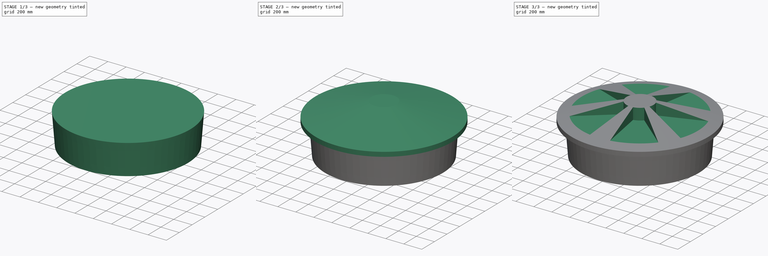
[diagram: build sequence overview — one tinted view per stage of 3, left to right]
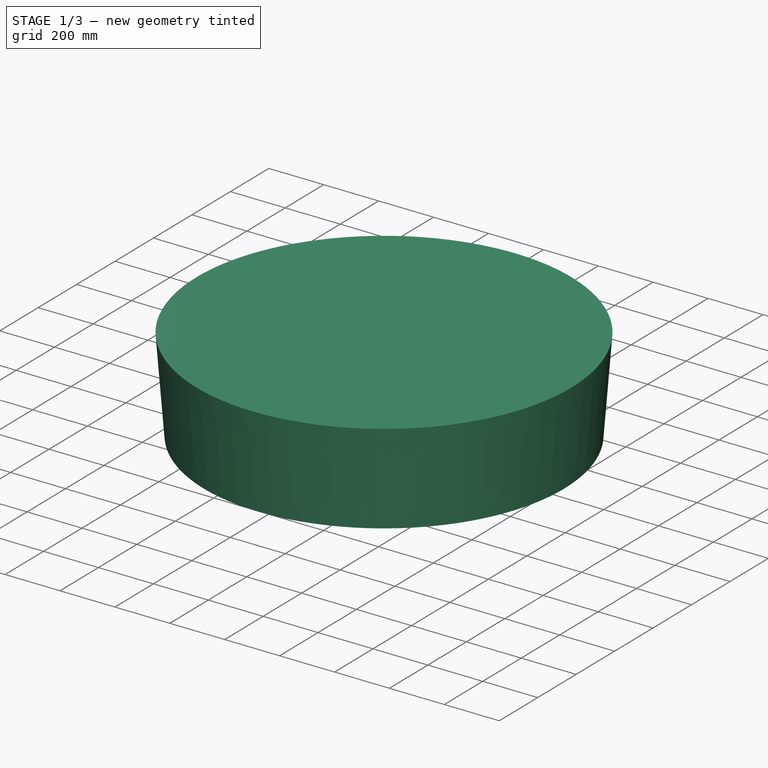
[diagram: stage 1 of 3 — iso view after this stage's code; geometry added in this stage tinted green]
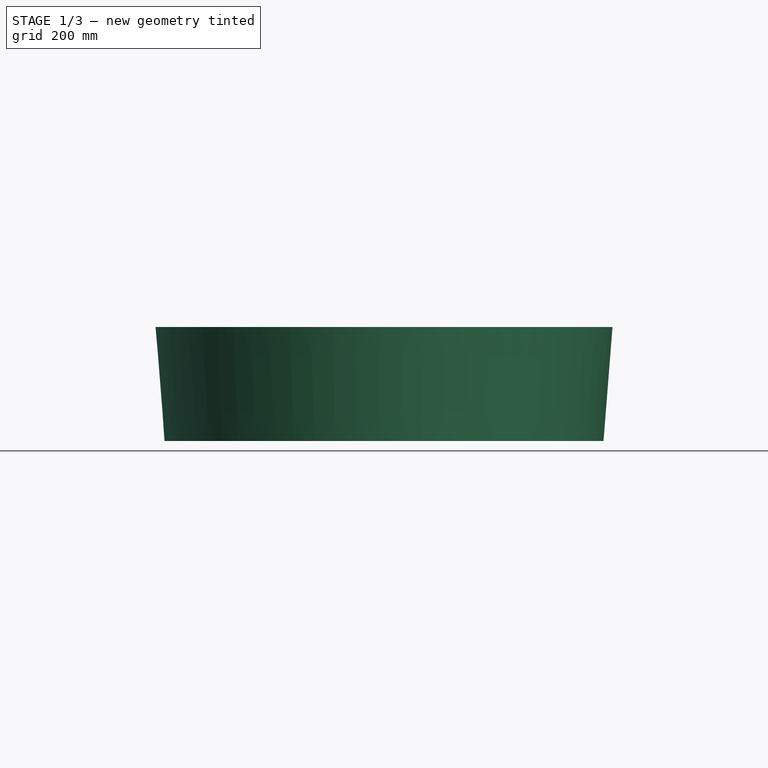
[diagram: stage 1 of 3 — front view after this stage's code; geometry added in this stage tinted green]
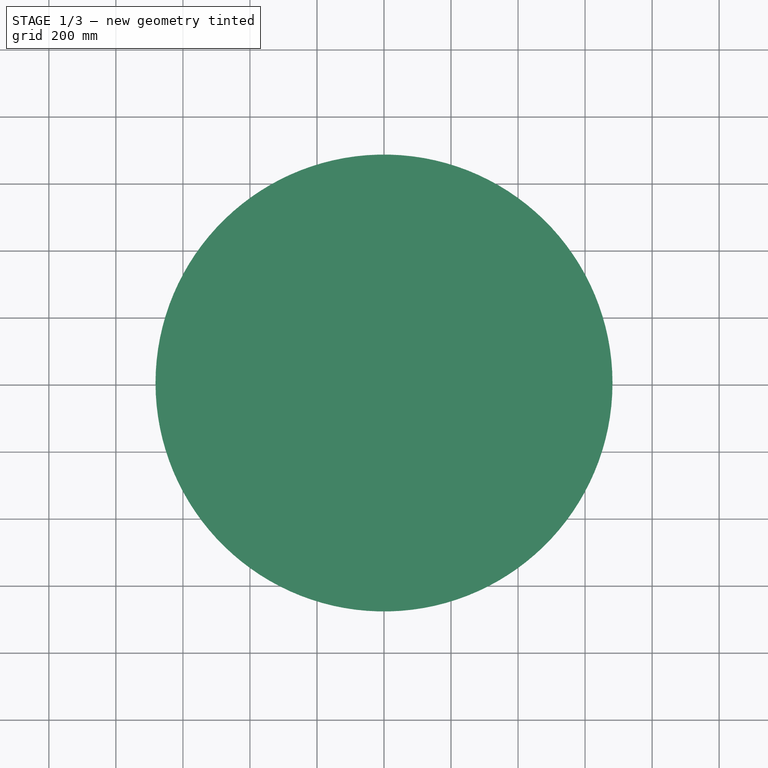
[diagram: stage 1 of 3 — top view after this stage's code; geometry added in this stage tinted green]
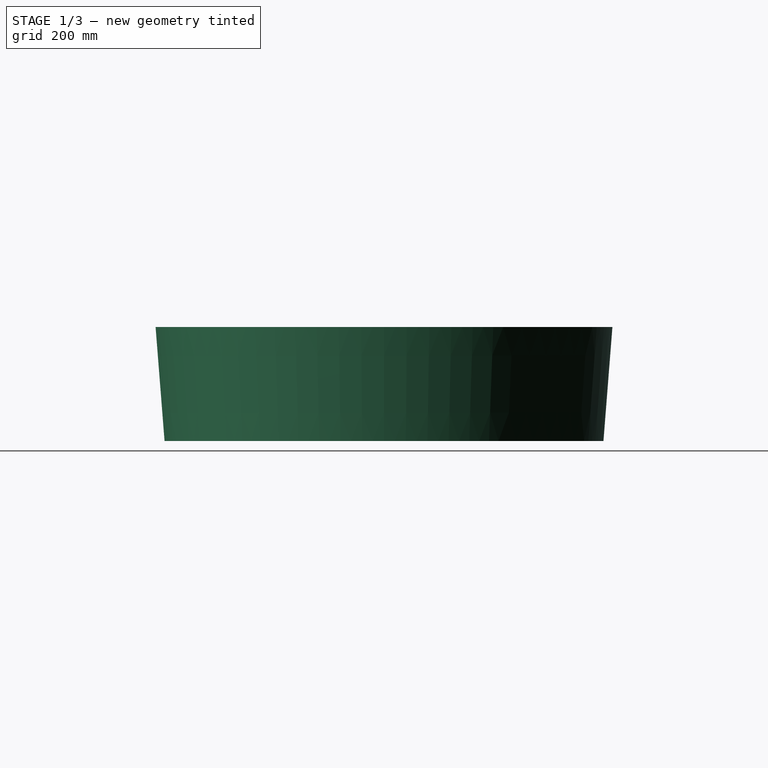
[diagram: stage 1 of 3 — right view after this stage's code; geometry added in this stage tinted green]
FCSTD DOCUMENT  (FreeCAD 0.17R8761 (Git))
Label: Water tank 500L flat
License: CreativeCommons Attribution
LicenseURL: http://creativecommons.org/licenses/by/4.0/
objects: Sketcher::SketchObject×4, PartDesign::Pad×2, PartDesign::Draft×1, PartDesign::Revolution×1, PartDesign::Pocket×1, PartDesign::PolarPattern×1, PartDesign::Body×1
note: 15 computed .brp shape members not serialized (recipe doc carries the construction recipe); baked Part::Feature solids carry a one-line shape summary decoded from their .brp

FEATURE [Sketcher::SketchObject] Sketch
  MapMode = 5
  Support = -> [XY_Plane]
  expr: Constraints[1] = 131cm / 2
  sketch-geometry (1):
    g0: Circle CenterX=0 CenterY=0 CenterZ=0 NormalX=0 NormalY=0 NormalZ=1 Radius=655
  constraints (2):
    c: Coincident(g0,g-1)
    c: Radius(g0) = 655
FEATURE [PartDesign::Pad] Pad
  Length = 340
  Length2 = 100
  Profile = -> Sketch
  Type = 0
FEATURE [PartDesign::Draft] Draft
  Angle = 4.5
  Base = -> Pad [Face1]
  BaseFeature = -> Pad
  NeutralPlane = -> Pad [Face2]
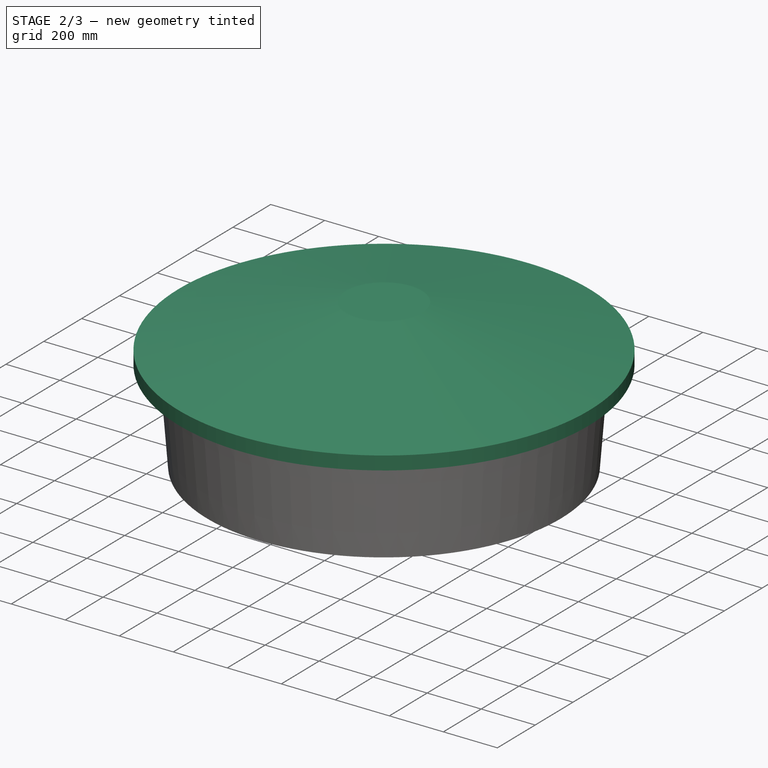
[diagram: stage 2 of 3 — iso view after this stage's code; geometry added in this stage tinted green]
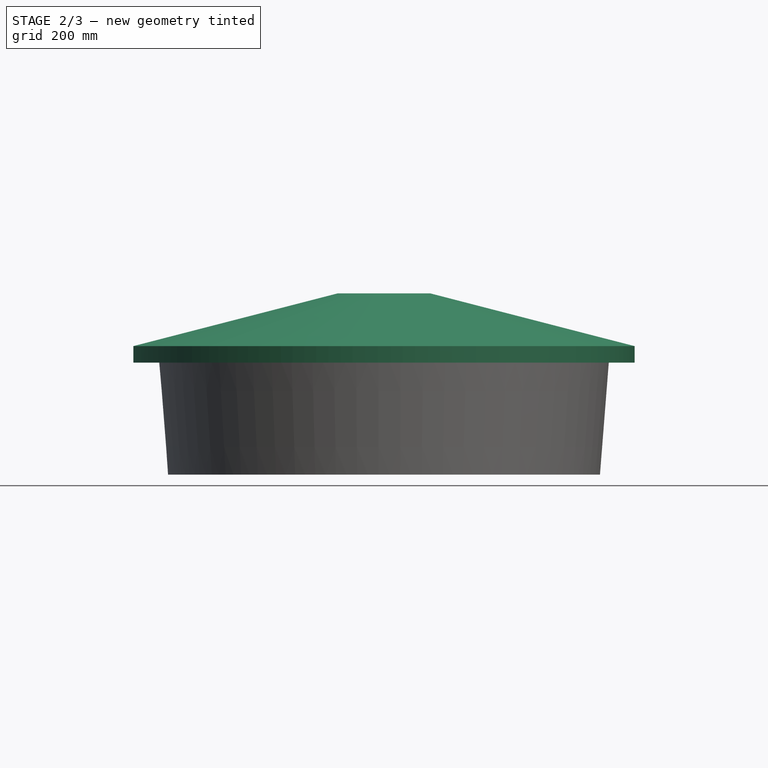
[diagram: stage 2 of 3 — front view after this stage's code; geometry added in this stage tinted green]
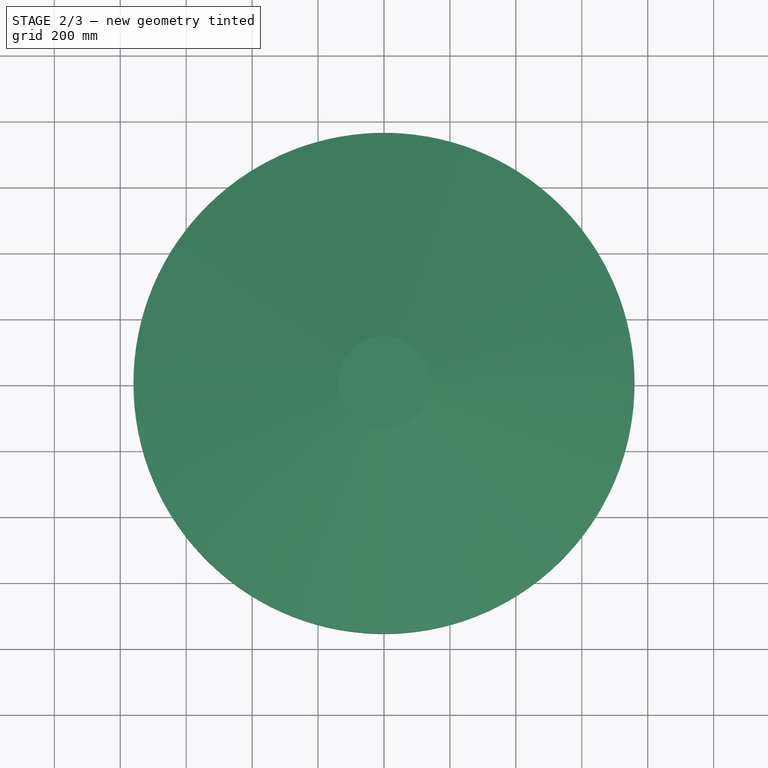
[diagram: stage 2 of 3 — top view after this stage's code; geometry added in this stage tinted green]
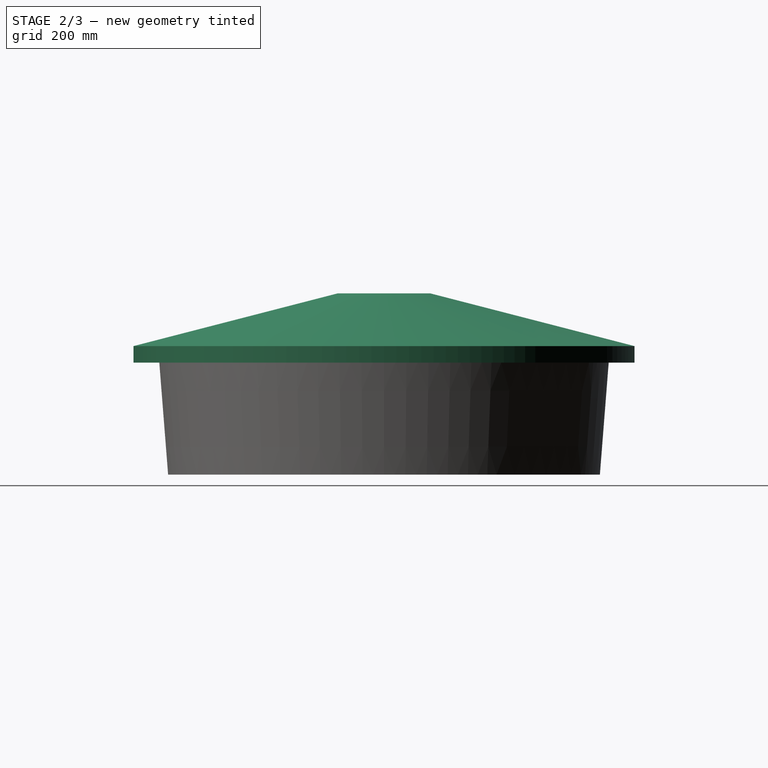
[diagram: stage 2 of 3 — right view after this stage's code; geometry added in this stage tinted green]
FEATURE [Sketcher::SketchObject] Sketch001
  MapMode = 5
  Placement = pos=(0,0,340) rot=(0,0,1;0rad)
  Support = -> [Draft]
  expr: Constraints[0] = 152cm / 2
  sketch-geometry (1):
    g0: Circle CenterX=0 CenterY=0 CenterZ=0 NormalX=0 NormalY=0 NormalZ=1 Radius=760
  constraints (2):
    c: Radius(g0) = 760
    c: Coincident(g0,g-1)
FEATURE [PartDesign::Pad] Pad001
  BaseFeature = -> Draft
  Length = 50
  Length2 = 100
  Profile = -> Sketch001
  Type = 0
FEATURE [Sketcher::SketchObject] Sketch002
  MapMode = 5
  Placement = pos=(0,0,0) rot=(1,0,0;1.5708rad)
  Support = -> [XZ_Plane]
  sketch-geometry (4):
    g0: LineSegment StartX=0 StartY=390 StartZ=0 EndX=-760 EndY=390 EndZ=0
    g1: LineSegment StartX=0 StartY=550 StartZ=0 EndX=0 EndY=390 EndZ=0
    g2: LineSegment StartX=0 StartY=550 StartZ=0 EndX=-140 EndY=550 EndZ=0
    g3: LineSegment StartX=-140 StartY=550 StartZ=0 EndX=-760 EndY=390 EndZ=0
  constraints (12):
    c: Horizontal(g0)
    c: Coincident(g0,g1)
    c: Vertical(g1)
    c: DistanceX(g0) = 0
    c: DistanceY(g0) = 390
    c: DistanceX(g0,g0) = 760
    c: DistanceY(g1,g1) = 160
    c: Coincident(g1,g2)
    c: Horizontal(g2)
    c: DistanceX(g2,g2) = 140
    c: Coincident(g3,g2)
    c: Coincident(g3,g0)
FEATURE [PartDesign::Revolution] Revolution
  Angle = 360
  Axis = (0,0,1)
  Base = (0,0,0)
  BaseFeature = -> Pad001
  Profile = -> Sketch002
  ReferenceAxis = -> Sketch002 [V_Axis]
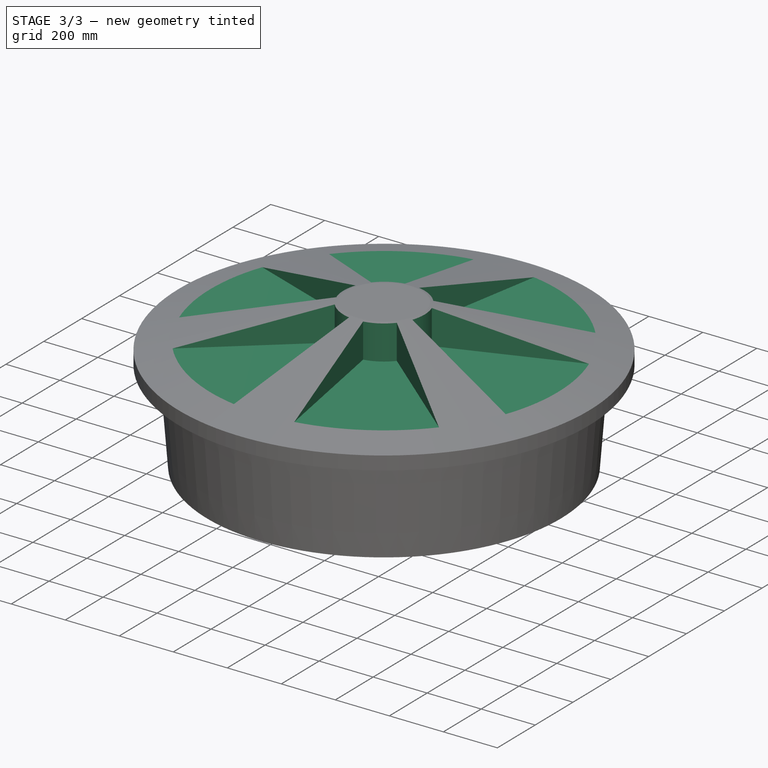
[diagram: stage 3 of 3 — iso view after this stage's code; geometry added in this stage tinted green]
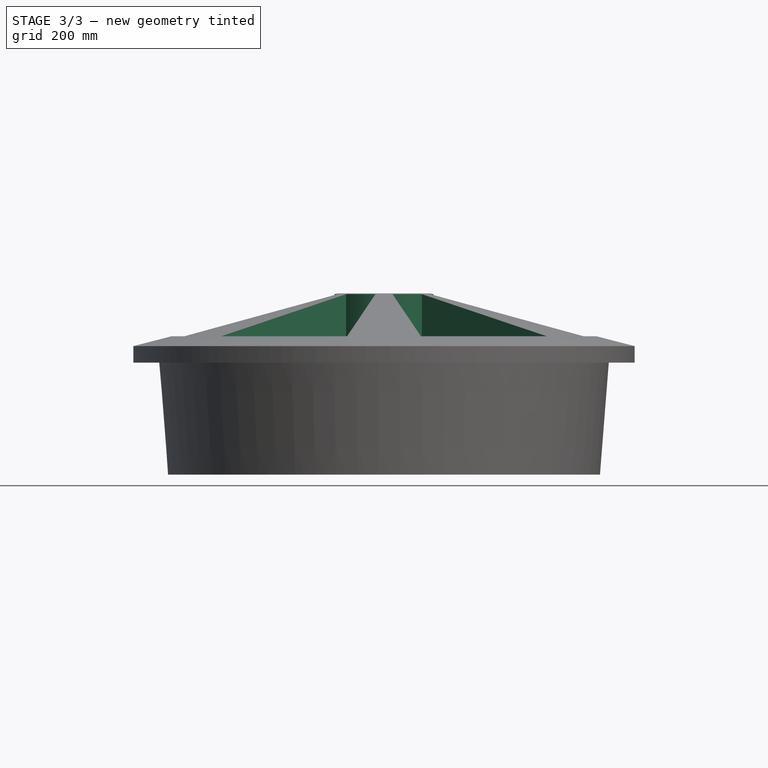
[diagram: stage 3 of 3 — front view after this stage's code; geometry added in this stage tinted green]
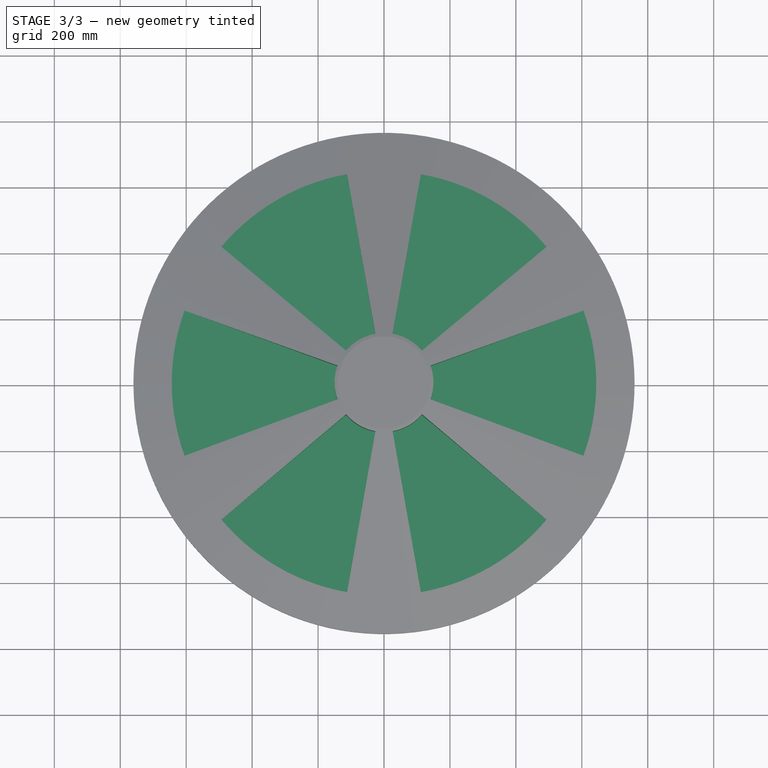
[diagram: stage 3 of 3 — top view after this stage's code; geometry added in this stage tinted green]
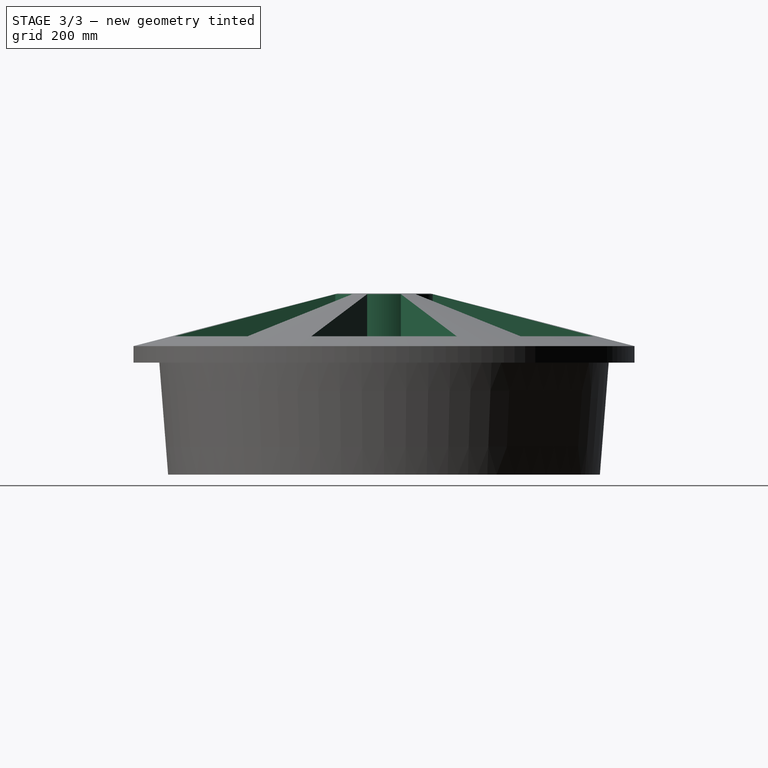
[diagram: stage 3 of 3 — right view after this stage's code; geometry added in this stage tinted green]
FEATURE [Sketcher::SketchObject] Sketch004
  MapMode = 5
  Placement = pos=(0,0,550) rot=(0,0,1;0rad)
  Support = -> [Revolution]
  sketch-geometry (6):
    g0: LineSegment [constr] StartX=0 StartY=0 StartZ=0 EndX=-1104.36 EndY=401.954 EndZ=0
    g1: LineSegment [constr] StartX=0 StartY=0 StartZ=0 EndX=-1160.2 EndY=-422.277 EndZ=0
    g2: ArcOfCircle CenterX=0 CenterY=0 CenterZ=0 NormalX=0 NormalY=0 NormalZ=1 Radius=700 StartAngle=2.79253 EndAngle=3.49066
    g3: ArcOfCircle CenterX=0 CenterY=0 CenterZ=0 NormalX=0 NormalY=0 NormalZ=1 Radius=150 StartAngle=2.79253 EndAngle=3.49066
    g4: LineSegment StartX=-657.785 StartY=239.414 StartZ=0 EndX=-140.954 EndY=51.303 EndZ=0
    g5: LineSegment StartX=-657.785 StartY=-239.414 StartZ=0 EndX=-140.954 EndY=-51.303 EndZ=0
  constraints (16):
    c: Coincident(g0,g-1)
    c: Coincident(g1,g-1)
    c: Angle(g0) = 2.79253
    c: Angle(g1) = -2.79253
    c: Coincident(g2,g-1)
    c: PointOnObject(g2,g1)
    c: PointOnObject(g2,g0)
    c: Coincident(g3,g-1)
    c: PointOnObject(g3,g1)
    c: PointOnObject(g3,g0)
    c: Radius(g3) = 150
    c: Radius(g2) = 700
    c: Coincident(g4,g2)
    c: Coincident(g4,g3)
    c: Coincident(g5,g2)
    c: Coincident(g5,g3)
FEATURE [PartDesign::Pocket] Pocket
  BaseFeature = -> Revolution
  Length = 130
  Profile = -> Sketch004
  Type = 0
FEATURE [PartDesign::PolarPattern] PolarPattern
  Angle = 360
  Axis = -> Sketch004 [N_Axis]
  BaseFeature = -> Pocket
  Occurrences = 6
  Originals = -> [Pocket]
FEATURE [PartDesign::Body] Body
  Model = -> [Sketch,Pad,Draft,Sketch001,Pad001,Sketch002,Revolution,Sketch004,Pocket,PolarPattern]
  Origin = -> BodyOrigin
  Tip = -> PolarPattern
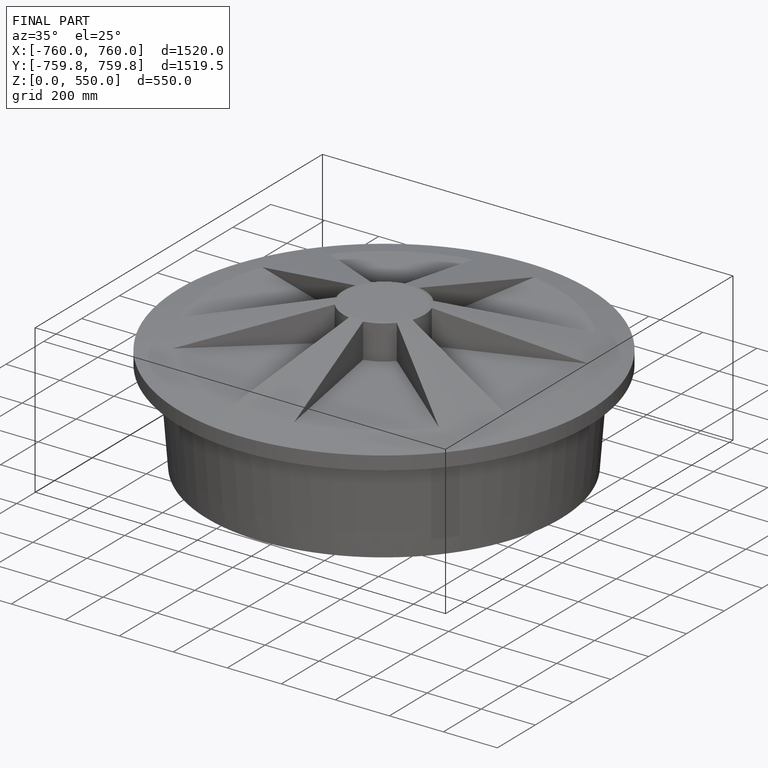
[diagram: finished part — iso view with bounding-box wireframe]
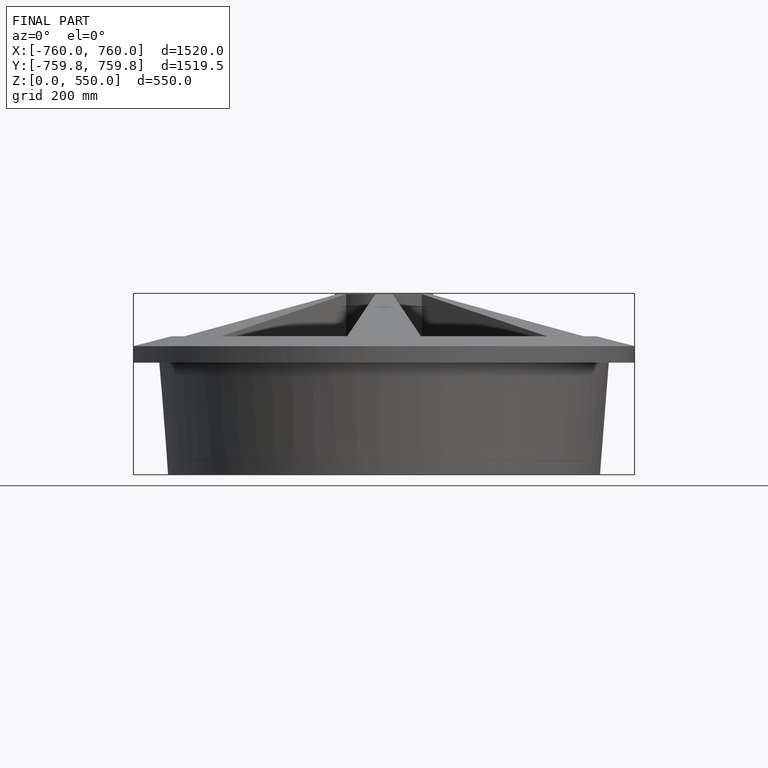
[diagram: finished part — front view with bounding-box wireframe]
